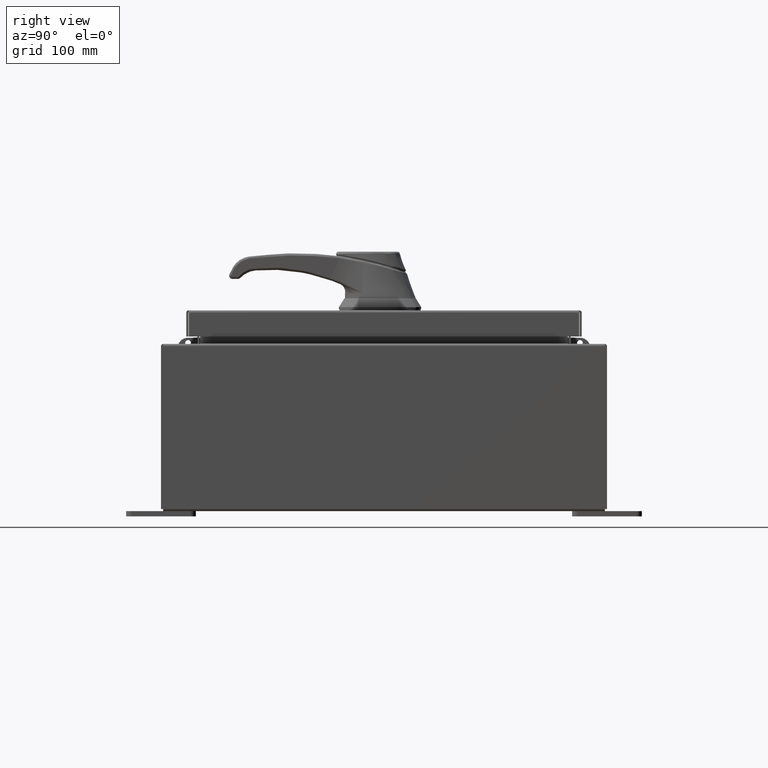
[diagram: clean part render]
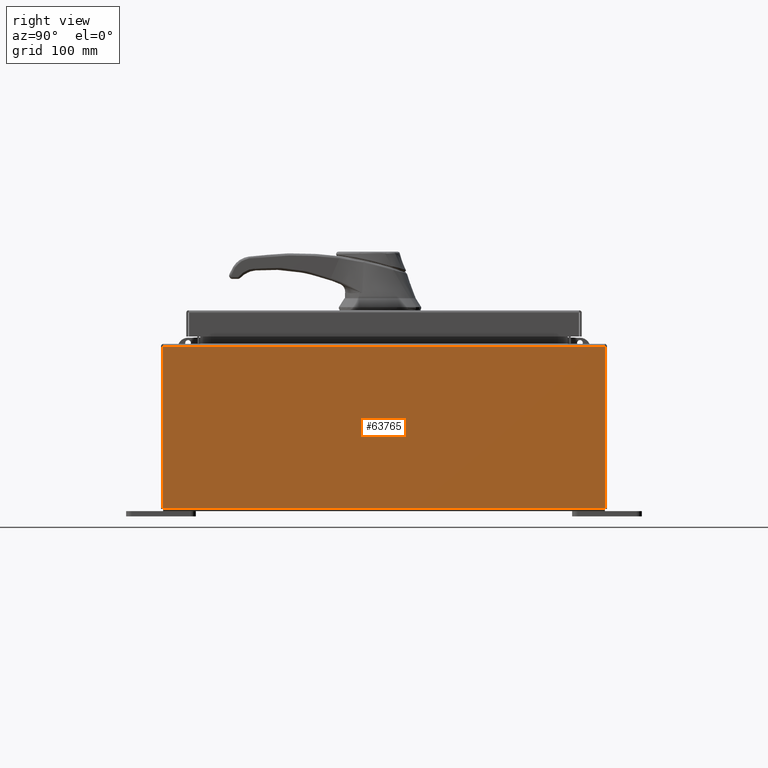
[diagram: same view with one face highlighted and labeled with its STEP entity id]
A machine part, right view. The second image highlights one B-rep face of the part: STEP entity #63765.
In plain terms, the highlighted planar face has unit normal (-1, 0, 0).
Its self-contained STEP definition (entity closure, byte-faithful):
#460 = PLANE ( 'NONE',  #87368 ) ;
#3397 = ORIENTED_EDGE ( 'NONE', *, *, #52681, .T. ) ;
#6300 = VERTEX_POINT ( 'NONE', #30058 ) ;
#6773 = DIRECTION ( 'NONE',  ( -0.0000000000000000000, -1.000000000000000000, -0.0000000000000000000 ) ) ;
#6830 = CARTESIAN_POINT ( 'NONE',  ( 8.000000000000019500, 7.925300000000000000, 5.837600000000001000 ) ) ;
#7997 = CARTESIAN_POINT ( 'NONE',  ( 7.999999999999999100, -7.925300000000000900, -2.683095728639522500E-014 ) ) ;
#14597 = DIRECTION ( 'NONE',  ( -0.0000000000000000000, -1.000000000000000000, -0.0000000000000000000 ) ) ;
#14751 = ORIENTED_EDGE ( 'NONE', *, *, #51732, .T. ) ;
#14820 = CARTESIAN_POINT ( 'NONE',  ( 7.999999999999999100, 7.925299999999998200, -2.829253492156558900E-014 ) ) ;
#17460 = EDGE_CURVE ( 'NONE', #6300, #41881, #25348, .T. ) ;
#18157 = LINE ( 'NONE', #7997, #102519 ) ;
#25348 = LINE ( 'NONE', #55780, #66278 ) ;
#26267 = EDGE_CURVE ( 'NONE', #35450, #41881, #18157, .T. ) ;
#27807 = ORIENTED_EDGE ( 'NONE', *, *, #17460, .F. ) ;
#30058 = CARTESIAN_POINT ( 'NONE',  ( 7.999999999999999100, 7.925300000000000000, 0.01299999999999984700 ) ) ;
#30077 = ORIENTED_EDGE ( 'NONE', *, *, #26267, .T. ) ;
#32077 = CARTESIAN_POINT ( 'NONE',  ( 8.000000000000019500, -7.925300000000000000, 5.837600000000001000 ) ) ;
#33132 = EDGE_LOOP ( 'NONE', ( #3397, #30077, #27807, #14751 ) ) ;
#35450 = VERTEX_POINT ( 'NONE', #32077 ) ;
#40723 = VERTEX_POINT ( 'NONE', #6830 ) ;
#41881 = VERTEX_POINT ( 'NONE', #57086 ) ;
#47324 = DIRECTION ( 'NONE',  ( 3.503965158194251300E-015, 0.0000000000000000000, 1.000000000000000000 ) ) ;
#51726 = LINE ( 'NONE', #79989, #90068 ) ;
#51732 = EDGE_CURVE ( 'NONE', #6300, #40723, #92721, .T. ) ;
#52681 = EDGE_CURVE ( 'NONE', #40723, #35450, #51726, .T. ) ;
#55780 = CARTESIAN_POINT ( 'NONE',  ( 7.999999999999999100, -7.925300000000000000, 0.01299999999999984700 ) ) ;
#57086 = CARTESIAN_POINT ( 'NONE',  ( 7.999999999999999100, -7.925300000000000000, 0.01299999999999984500 ) ) ;
#57699 = CARTESIAN_POINT ( 'NONE',  ( 7.999999999999999100, 0.0000000000000000000, -2.829253492156558900E-014 ) ) ;
#63765 = ADVANCED_FACE ( 'NONE', ( #103666 ), #460, .F. ) ;
#65922 = DIRECTION ( 'NONE',  ( 3.503965158194250900E-015, 0.0000000000000000000, 1.000000000000000000 ) ) ;
#66278 = VECTOR ( 'NONE', #6773, 39.37007874015748100 ) ;
#73755 = DIRECTION ( 'NONE',  ( -3.503965158194251300E-015, -1.844192188523290500E-016, -1.000000000000000000 ) ) ;
#79989 = CARTESIAN_POINT ( 'NONE',  ( 8.000000000000019500, 7.925300000000000000, 5.837600000000001000 ) ) ;
#87368 = AXIS2_PLACEMENT_3D ( 'NONE', #57699, #90173, #65922 ) ;
#90068 = VECTOR ( 'NONE', #14597, 39.37007874015748100 ) ;
#90173 = DIRECTION ( 'NONE',  ( -1.000000000000000000, 0.0000000000000000000, 3.503965158194250900E-015 ) ) ;
#90177 = VECTOR ( 'NONE', #47324, 39.37007874015748100 ) ;
#92721 = LINE ( 'NONE', #14820, #90177 ) ;
#102519 = VECTOR ( 'NONE', #73755, 39.37007874015748100 ) ;
#103666 = FACE_OUTER_BOUND ( 'NONE', #33132, .T. ) ;